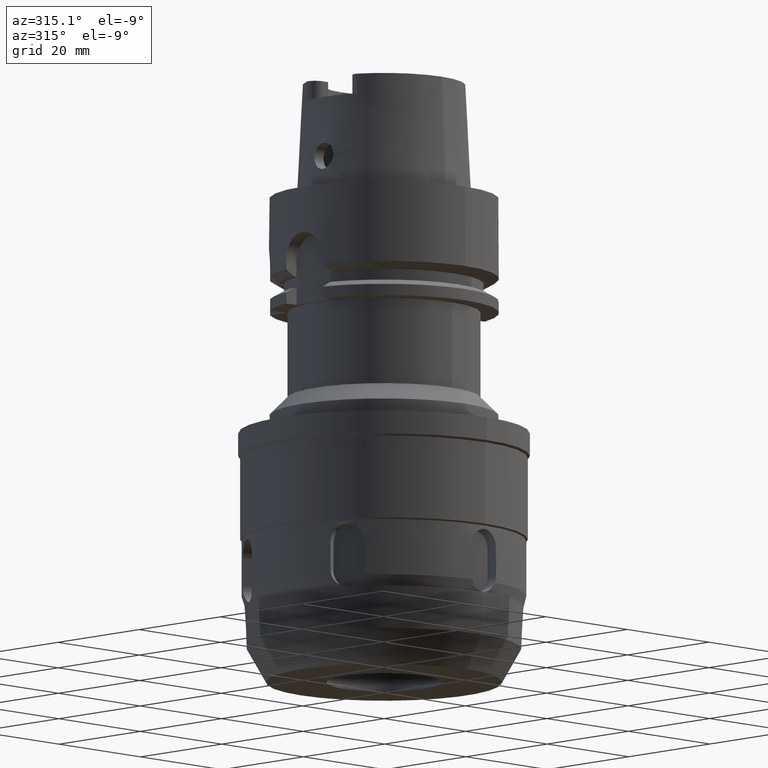
[diagram: clean part render]
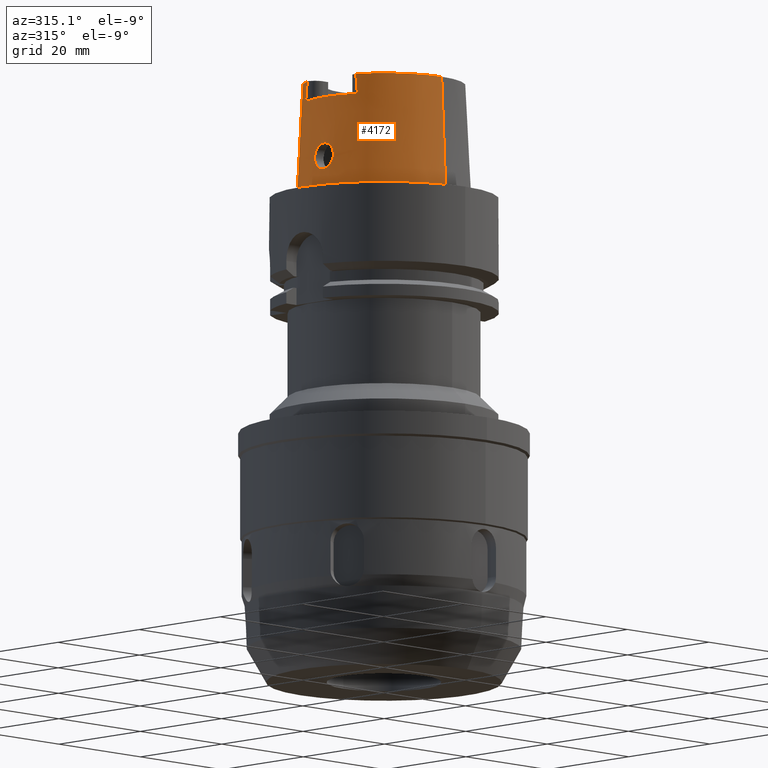
[diagram: same view with one face highlighted and labeled with its STEP entity id]
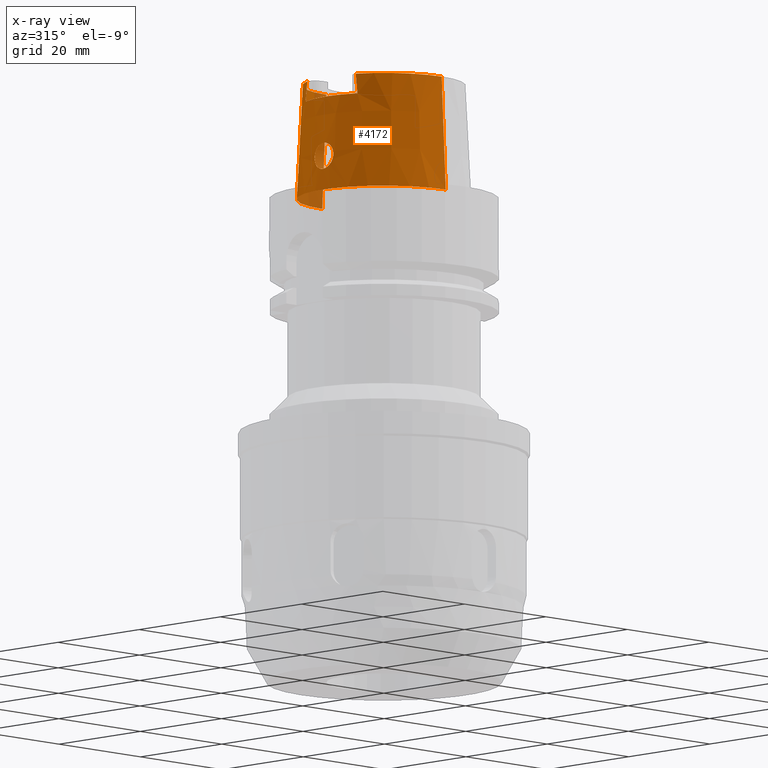
[diagram: x-ray of the same camera — body ghosted, the highlighted face saturated]
A machine part, auxiliary view. The second image highlights one B-rep face of the part: STEP entity #4172.
The next image is the same camera in x-ray: the body ghosted, the highlighted face saturated — about 4% of this face is hidden behind the body in this view.
In plain terms, the highlighted conical surface has half-angle 2.862 deg.
Its self-contained STEP definition (entity closure, byte-faithful):
#26=CARTESIAN_POINT('',(0.E0,1.347111479062E-14,2.E1));
#27=DIRECTION('',(0.E0,0.E0,-1.E0));
#28=DIRECTION('',(-9.070439482899E-1,4.210359555556E-1,0.E0));
#29=AXIS2_PLACEMENT_3D('',#26,#27,#28);
#124=CARTESIAN_POINT('',(0.E0,1.347111479062E-14,1.65E1));
#125=DIRECTION('',(0.E0,0.E0,-1.E0));
#126=DIRECTION('',(-8.960012919965E-1,-4.440514437997E-1,0.E0));
#127=AXIS2_PLACEMENT_3D('',#124,#125,#126);
#201=CARTESIAN_POINT('',(0.E0,1.347111479062E-14,2.E1));
#202=DIRECTION('',(0.E0,0.E0,-1.E0));
#203=DIRECTION('',(0.E0,-1.E0,0.E0));
#204=AXIS2_PLACEMENT_3D('',#201,#202,#203);
#216=CARTESIAN_POINT('',(-1.288000070477E1,-5.978696029550E0,2.E1));
#217=CARTESIAN_POINT('',(-1.288000070477E1,-6.024863191146E0,1.961125248905E1));
#218=CARTESIAN_POINT('',(-1.288000003776E1,-6.116296739063E0,1.883365315329E1));
#219=CARTESIAN_POINT('',(-1.287999881067E1,-6.251180076564E0,1.766698782911E1));
#220=CARTESIAN_POINT('',(-1.288000274993E1,-6.339412854539E0,1.688901927108E1));
#221=CARTESIAN_POINT('',(-1.288000274993E1,-6.383217822733E0,1.65E1));
#226=DIRECTION('',(0.E0,-4.993926899650E-2,-9.987522562738E-1));
#227=VECTOR('',#226,2.002498605071E1);
#228=CARTESIAN_POINT('',(0.E0,-1.419997346797E1,2.E1));
#229=LINE('',#228,#227);
#233=CARTESIAN_POINT('',(-1.501500049748E1,0.E0,3.7E0));
#234=CARTESIAN_POINT('',(-1.501500049748E1,-2.170216076864E-1,3.7E0));
#235=CARTESIAN_POINT('',(-1.500221374174E1,-6.517656848706E-1,
3.762047396152E0));
#236=CARTESIAN_POINT('',(-1.494954600894E1,-1.251696968196E0,4.033204765711E0));
#237=CARTESIAN_POINT('',(-1.487536972274E1,-1.757536554572E0,4.467195259359E0));
#238=CARTESIAN_POINT('',(-1.479820335422E1,-2.120514964367E0,5.029886225690E0));
#239=CARTESIAN_POINT('',(-1.473694855163E1,-2.308050195672E0,5.668996211624E0));
#240=CARTESIAN_POINT('',(-1.470337775089E1,-2.307373918280E0,6.334039558666E0));
#241=CARTESIAN_POINT('',(-1.470020835089E1,-2.120698818662E0,6.967750026231E0));
#242=CARTESIAN_POINT('',(-1.472050573164E1,-1.764632768873E0,7.523568169029E0));
#243=CARTESIAN_POINT('',(-1.475154052063E1,-1.263338316878E0,7.959771418442E0));
#244=CARTESIAN_POINT('',(-1.477812574155E1,-6.580903285561E-1,
8.236841067998E0));
#245=CARTESIAN_POINT('',(-1.478499286952E1,-2.193587702631E-1,8.3E0));
#246=CARTESIAN_POINT('',(-1.478499286952E1,0.E0,8.3E0));
#251=CARTESIAN_POINT('',(-1.478499286952E1,0.E0,8.3E0));
#252=CARTESIAN_POINT('',(-1.478499286952E1,2.193430830268E-1,8.3E0));
#253=CARTESIAN_POINT('',(-1.477812141071E1,6.581397200029E-1,8.236785609024E0));
#254=CARTESIAN_POINT('',(-1.475155964908E1,1.263051418590E0,7.960006002917E0));
#255=CARTESIAN_POINT('',(-1.472043391674E1,1.765723515525E0,7.522690095010E0));
#256=CARTESIAN_POINT('',(-1.470013016856E1,2.122400425187E0,6.964335825623E0));
#257=CARTESIAN_POINT('',(-1.470350678501E1,2.307597908098E0,6.330742606788E0));
#258=CARTESIAN_POINT('',(-1.473694697350E1,2.307668302330E0,5.670197963143E0));
#259=CARTESIAN_POINT('',(-1.479749942398E1,2.122963215562E0,5.036370128164E0));
#260=CARTESIAN_POINT('',(-1.487422908775E1,1.763825726101E0,4.474477839434E0));
#261=CARTESIAN_POINT('',(-1.494889050134E1,1.257986912866E0,4.036619852843E0));
#262=CARTESIAN_POINT('',(-1.500222621412E1,6.529403476124E-1,3.761957751644E0));
#263=CARTESIAN_POINT('',(-1.501500049748E1,2.171767332335E-1,3.7E0));
#264=CARTESIAN_POINT('',(-1.501500049748E1,0.E0,3.7E0));
#269=DIRECTION('',(0.E0,4.993926899650E-2,-9.987522562738E-1));
#270=VECTOR('',#269,2.002498605071E1);
#271=CARTESIAN_POINT('',(0.E0,1.419997346797E1,2.E1));
#272=LINE('',#271,#270);
#3106=CARTESIAN_POINT('',(0.E0,1.347111479062E-14,-3.410605131648E-13));
#3107=DIRECTION('',(0.E0,0.E0,1.E0));
#3108=DIRECTION('',(0.E0,1.E0,0.E0));
#3109=AXIS2_PLACEMENT_3D('',#3106,#3107,#3108);
#3463=CARTESIAN_POINT('',(-1.287999936600E1,6.383233176987E0,1.65E1));
#3464=CARTESIAN_POINT('',(-1.287999936600E1,6.339428191170E0,1.688902067597E1));
#3465=CARTESIAN_POINT('',(-1.287999994889E1,6.251140810388E0,1.766698345040E1));
#3466=CARTESIAN_POINT('',(-1.288000112988E1,6.116257762752E0,1.883364869537E1));
#3467=CARTESIAN_POINT('',(-1.287999739769E1,6.024878649648E0,1.961125402453E1));
#3468=CARTESIAN_POINT('',(-1.287999739769E1,5.978711835448E0,2.E1));
#3507=CARTESIAN_POINT('',(-1.287999739769E1,5.978711835448E0,2.E1));
#3508=VERTEX_POINT('',#3507);
#3509=CARTESIAN_POINT('',(0.E0,1.419997346797E1,2.E1));
#3510=VERTEX_POINT('',#3509);
#3522=CARTESIAN_POINT('',(-1.288000070477E1,-5.978696029550E0,2.E1));
#3524=VERTEX_POINT('',#3522);
#3539=CARTESIAN_POINT('',(0.E0,-1.419997346797E1,2.E1));
#3540=VERTEX_POINT('',#3539);
#3555=CARTESIAN_POINT('',(-1.288000274993E1,-6.383217822733E0,1.65E1));
#3556=VERTEX_POINT('',#3555);
#3557=CARTESIAN_POINT('',(-1.288E1,6.383230300258E0,1.65E1));
#3558=VERTEX_POINT('',#3557);
#3561=CARTESIAN_POINT('',(0.E0,-1.520000663301E1,-2.273736754432E-13));
#3562=VERTEX_POINT('',#3561);
#3563=CARTESIAN_POINT('',(0.E0,1.520000663301E1,-3.410605131648E-13));
#3564=VERTEX_POINT('',#3563);
#3565=VERTEX_POINT('',#233);
#3566=VERTEX_POINT('',#246);
#4147=CARTESIAN_POINT('',(0.E0,1.347111479062E-14,1.E1));
#4148=DIRECTION('',(0.E0,0.E0,-1.E0));
#4149=DIRECTION('',(0.E0,-1.E0,0.E0));
#4150=AXIS2_PLACEMENT_3D('',#4147,#4148,#4149);
#4151=CONICAL_SURFACE('',#4150,1.469999005049E1,2.8625E0);
#4152=ORIENTED_EDGE('',*,*,#4083,.F.);
#4153=ORIENTED_EDGE('',*,*,#4139,.F.);
#4154=ORIENTED_EDGE('',*,*,#4128,.F.);
#4156=ORIENTED_EDGE('',*,*,#4155,.T.);
#4158=ORIENTED_EDGE('',*,*,#4157,.F.);
#4160=ORIENTED_EDGE('',*,*,#4159,.F.);
#4161=ORIENTED_EDGE('',*,*,#4017,.F.);
#4163=ORIENTED_EDGE('',*,*,#4162,.F.);
#4164=EDGE_LOOP('',(#4152,#4153,#4154,#4156,#4158,#4160,#4161,#4163));
#4165=FACE_OUTER_BOUND('',#4164,.F.);
#4167=ORIENTED_EDGE('',*,*,#4166,.T.);
#4169=ORIENTED_EDGE('',*,*,#4168,.T.);
#4170=EDGE_LOOP('',(#4167,#4169));
#4171=FACE_BOUND('',#4170,.F.);
#30=CIRCLE('',#29,1.419997346797E1);
#128=CIRCLE('',#127,1.437497927185E1);
#205=CIRCLE('',#204,1.419997346797E1);
#222=B_SPLINE_CURVE_WITH_KNOTS('',3,(#216,#217,#218,#219,#220,#221),
.UNSPECIFIED.,.F.,.F.,(4,1,1,4),(0.E0,3.333333333333E-1,6.666666666667E-1,1.E0),
.UNSPECIFIED.);
#247=B_SPLINE_CURVE_WITH_KNOTS('',3,(#233,#234,#235,#236,#237,#238,#239,#240,
#241,#242,#243,#244,#245,#246),.UNSPECIFIED.,.F.,.F.,(4,1,1,1,1,1,1,1,1,1,1,4),(
0.E0,9.090909090909E-2,1.818181818182E-1,2.727272727273E-1,3.636363636364E-1,
4.545454545455E-1,5.454545454545E-1,6.363636363636E-1,7.272727272727E-1,
8.181818181818E-1,9.090909090909E-1,1.E0),.UNSPECIFIED.);
#265=B_SPLINE_CURVE_WITH_KNOTS('',3,(#251,#252,#253,#254,#255,#256,#257,#258,
#259,#260,#261,#262,#263,#264),.UNSPECIFIED.,.F.,.F.,(4,1,1,1,1,1,1,1,1,1,1,4),(
0.E0,9.090909090909E-2,1.818181818182E-1,2.727272727273E-1,3.636363636364E-1,
4.545454545455E-1,5.454545454545E-1,6.363636363636E-1,7.272727272727E-1,
8.181818181818E-1,9.090909090909E-1,1.E0),.UNSPECIFIED.);
#3110=CIRCLE('',#3109,1.520000663301E1);
#3469=B_SPLINE_CURVE_WITH_KNOTS('',3,(#3463,#3464,#3465,#3466,#3467,#3468),
.UNSPECIFIED.,.F.,.F.,(4,1,1,4),(0.E0,3.333333333333E-1,6.666666666667E-1,1.E0),
.UNSPECIFIED.);
#4017=EDGE_CURVE('',#3508,#3510,#30,.T.);
#4083=EDGE_CURVE('',#3556,#3558,#128,.T.);
#4128=EDGE_CURVE('',#3540,#3524,#205,.T.);
#4139=EDGE_CURVE('',#3524,#3556,#222,.T.);
#4155=EDGE_CURVE('',#3540,#3562,#229,.T.);
#4157=EDGE_CURVE('',#3564,#3562,#3110,.T.);
#4159=EDGE_CURVE('',#3510,#3564,#272,.T.);
#4162=EDGE_CURVE('',#3558,#3508,#3469,.T.);
#4166=EDGE_CURVE('',#3565,#3566,#247,.T.);
#4168=EDGE_CURVE('',#3566,#3565,#265,.T.);
#4172=ADVANCED_FACE('',(#4165,#4171),#4151,.T.);